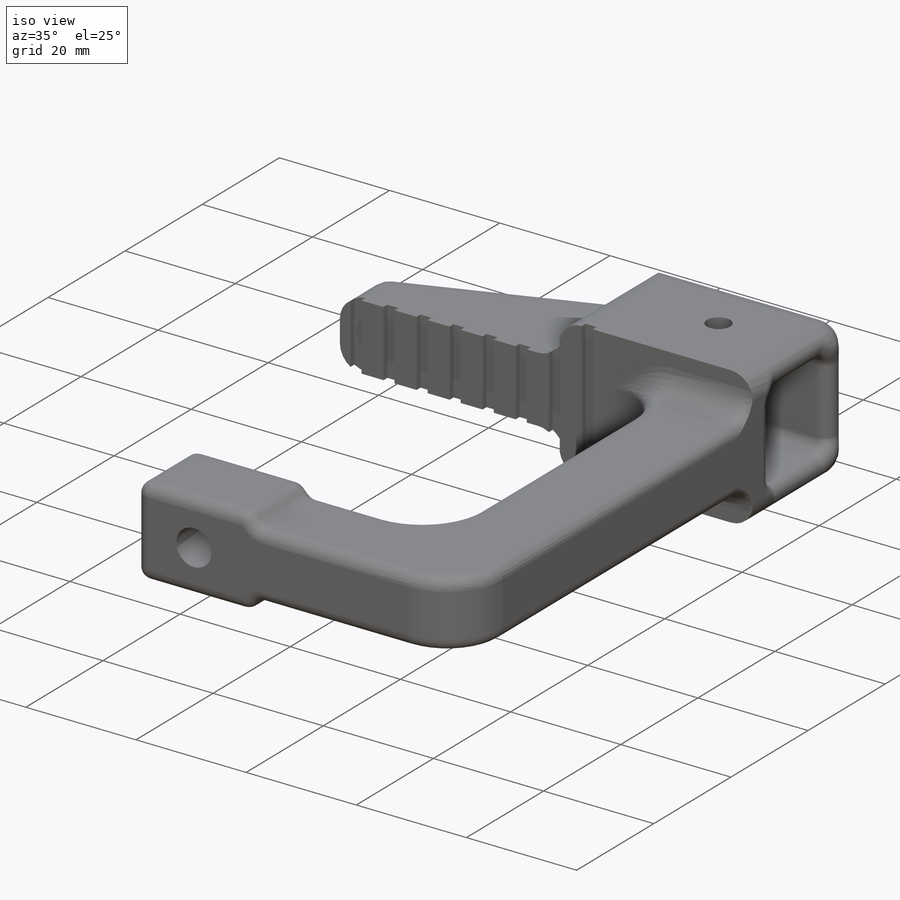
[diagram: iso view]
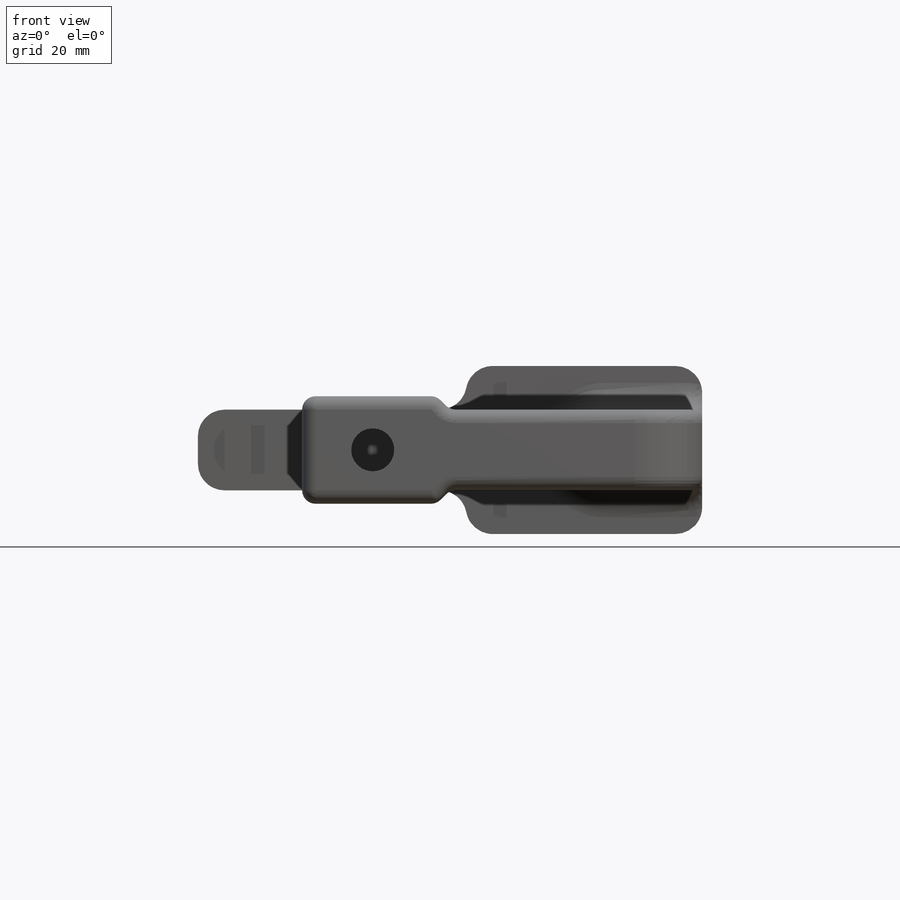
[diagram: front view]
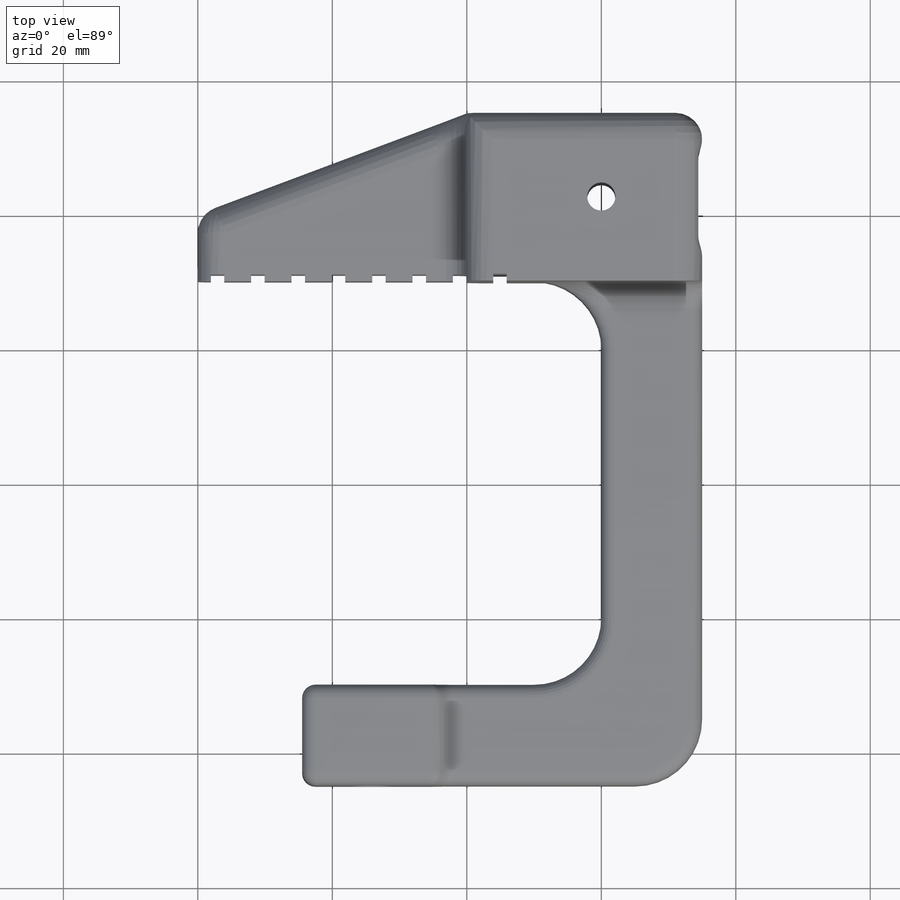
[diagram: top view]
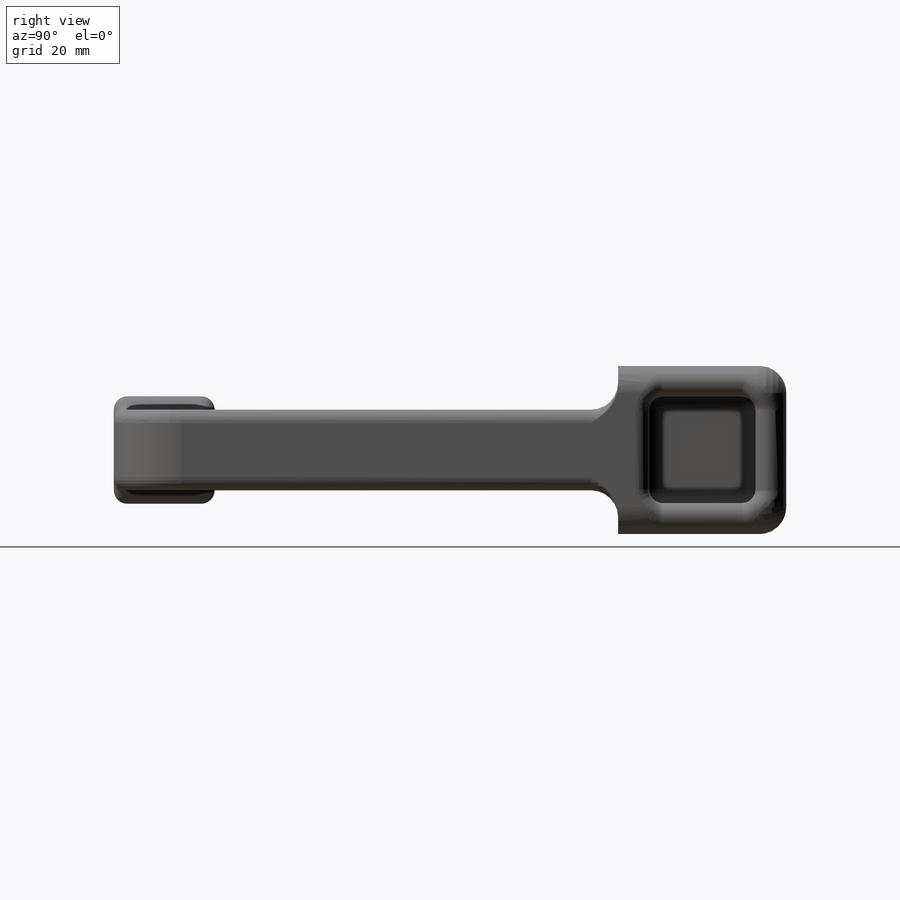
[diagram: right view]
SOLIDWORKS PART (.sldprt)
format: sldprt  version: not decoded by parser v0  size: 706,048 bytes
history: native  units: mm
features: sketch x8, fillet x6, cut_extrude x5, extrude x3, pattern_linear x2, material x1, chamfer x1 (+12 scaffold rows collapsed)
feature tree (38):
  scaffold x12  (default folders/planes/origin — collapsed)
  material  "Material <not specified>"
  sketch  "Sketch1"  dims[c1.D9=~2.22877mm c1.D16=4.0mm c1.D17=4.0mm c1.D18=4.0mm c1.D19=4.0mm c1.D13=8.0mm c1.D15=~1.895471mm c1.D10=~5.888499mm c1.D4=~4.665118mm c1.D20=10.0mm c1.D21=10.0mm c1.D22=10.0mm c1.D1=80.0mm c1.D2=80.0mm c1.D3=15.0mm c2.D4=15.0mm c2.D5=15.0mm c2.D6=15.0mm c2.D7=35.0mm c2.D8=50.0mm c2.D9=7.5mm c2.D10=15.0mm c2.D11=10.0mm c2.D12=10.0mm c2.D13=10.0mm c2.D14=10.0mm c2.D15=7.5mm c2.D20=5.0mm c2.D21=5.0mm c2.D22=5.0mm c2.D23=30.0mm c2.D24=30.0mm c2.D25=5.0mm c2.D26=5.0mm c2.D27=5.0mm c2.D28=30.0mm c2.D29=20.0mm c2.D30=15.0mm c2.D1=50.0mm c3.D6=50.0mm c3.D7=30.0mm c3.D8=15.0mm c3.D9=115.0mm c3.D10=5.0mm c3.D11=10.0mm c3.D12=35.0mm c3.D2=60.0mm c4.D6=35.0mm c4.D7=60.0mm c4.D8=60.0mm c4.D10=75.0mm c5.D7=45.0mm c5.D8=15.0mm c5.D11=22.0mm c5.D13=10.0mm c5.D14=10.0mm c5.D15=10.0mm c5.D16=10.0mm c5.D10=10.0mm c5.D17=10.0mm c5.D4=10.0mm c5.D9=60.0mm c5.D3=25.0mm c6.D4=10.0mm c6.D6=55.0mm c6.D9=60.0mm c7.D6=60.0mm c7.D9=10.0mm c7.D18=90.0mm c7.D19=25.0mm c7.D3=40.0mm c8.D18=10.0mm c8.D22=25.0mm c8.D23=12.5mm c8.D7=12.5mm c9.D18=12.5mm]
  extrude  "Boss-Extrude1"  Depth=12.5mm
  sketch  "Sketch3"  dims[c1.D1=15.8mm c1.D2=15.8mm c1.D3=4.6mm c1.D4=4.6mm c2.D3=4.6mm c2.D5=~4.489975mm c2.D6=25.0mm c3.D3=4.6mm c3.D4=4.6mm]
  cut_extrude  "Cut-Extrude1"  Depth=32mm
  extrude  "Boss-Extrude2"  [1 undecoded]
  sketch  "Sketch1<3>"  dims[D1=6.0mm D2=6.0mm]
  sketch  "Sketch8"  dims[c1.D1=~2.916376mm c1.D4=4.0mm c1.D5=4.2mm c2.D1=15.0mm c2.D2=10.0mm c2.D3=12.5mm]
  cut_extrude  "Cut-Extrude7"  [1 undecoded]
  extrude  "Boss-Extrude4"  [1 undecoded]
  sketch  "Sketch1<5>"  dims[D1=8.0mm D2=8.0mm]
  chamfer  "Chamfer3"  Distance=2mm Angle=45deg
  fillet  "Fillet3"  Radius=2mm
  fillet  "Fillet6"  Radius=4mm
  fillet  "Fillet7"  Radius=4mm
  fillet  "Fillet8"  Radius=4mm
  fillet  "Fillet9"  Radius=2mm
  sketch  "Sketch10"  dims[D1=2.0mm D2=4.0mm D3=15.0mm]
  cut_extrude  "Cut-Extrude11"  Depth=1mm
  pattern_linear  "LPattern1"  Count1=7 Count2=1 Spacing1=6mm Spacing2=10mm
  pattern_linear  "LPattern3"  Count1=2 Count2=1 Spacing1=6mm Spacing2=10mm
  fillet  "Fillet10"  Radius=2mm
  sketch  "Sketch12"  dims[c1.D2=~1.760056mm c1.D1=10.5mm c2.D2=3.0mm c2.D3=8.5mm c2.D4=6.0mm c3.D2=8.5mm]
  cut_extrude  "Cut-Extrude13"  Depth=5.5mm
  sketch  "Sketch16"  dims[D1=6.4mm]
  cut_extrude  "Cut-Extrude14"  [1 undecoded]
decode coverage: 21 of 25 modeling features carry decoded parameters
note: ~ marks probable driven/reference dimensions
note: 4 parameter values undecoded
summary: no parameter record found for 4 features
note: suppression state not decoded; provenance and decode notes live in map.json
